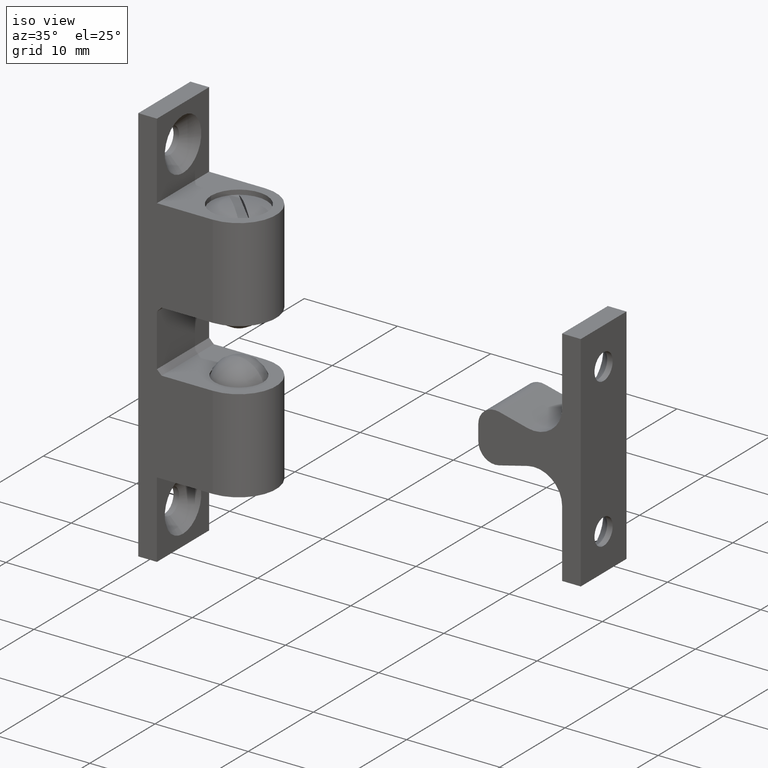
[diagram: clean part render]
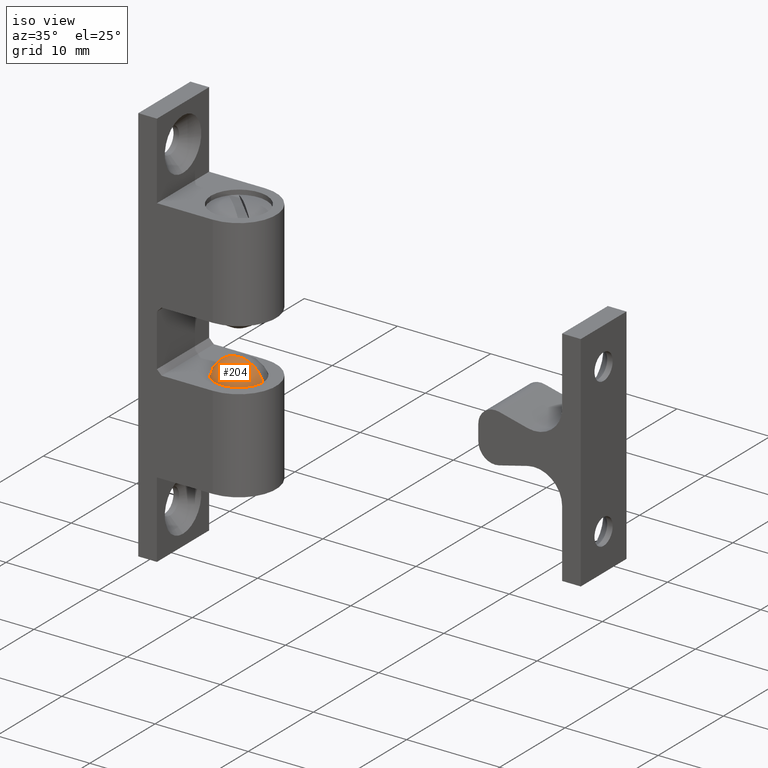
[diagram: same view with one face highlighted and labeled with its STEP entity id]
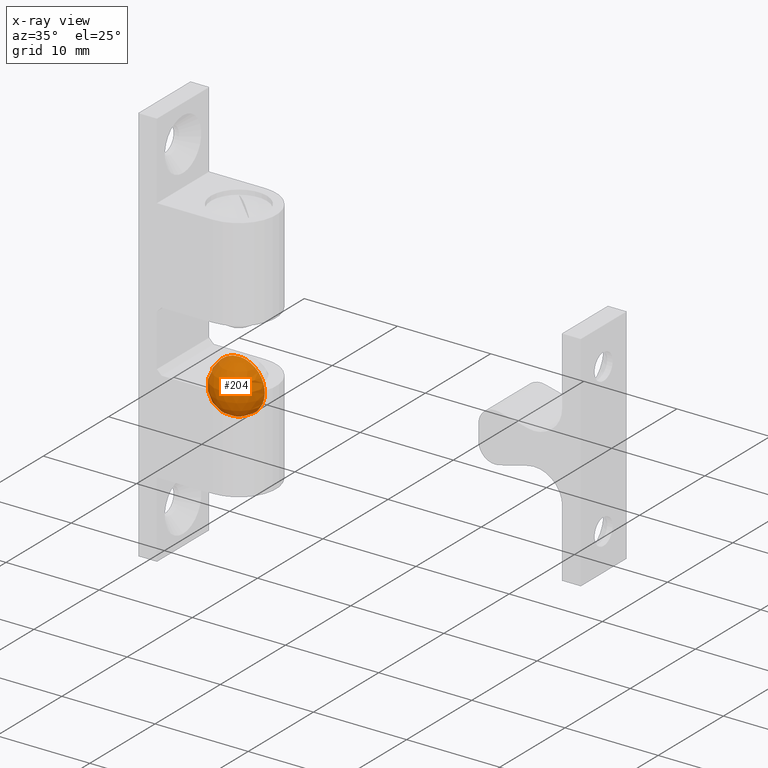
[diagram: x-ray of the same camera — body ghosted, the highlighted face saturated]
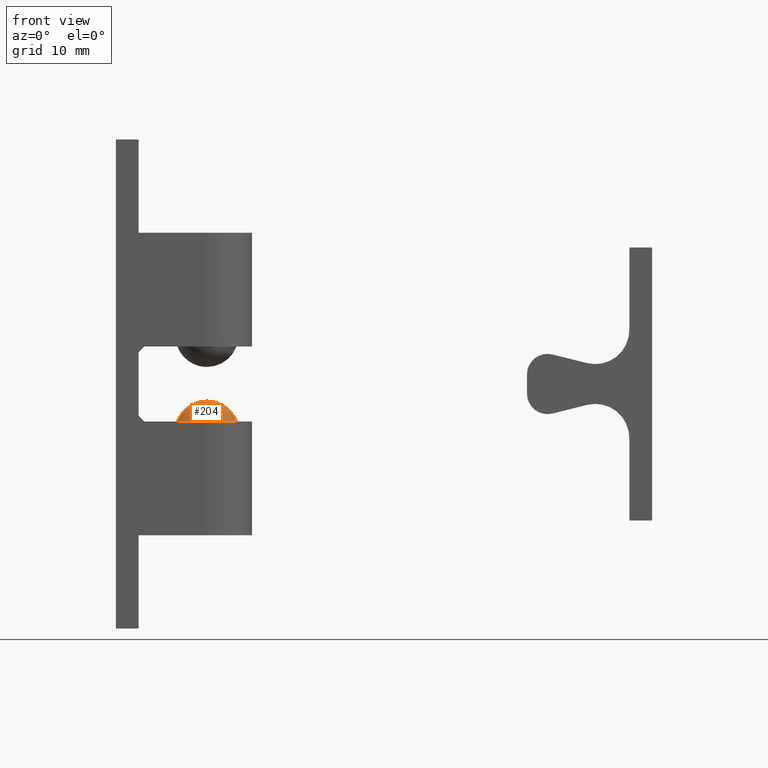
[diagram: same view with one face highlighted and labeled with its STEP entity id]
A machine part, iso view. The second image highlights one B-rep face of the part: STEP entity #204.
The next image is the same camera in x-ray: the body ghosted, the highlighted face saturated — about 0% of this face is hidden behind the body in this view.
A second angle (front view) of the same face is appended — the face is thin or edge-on in the first view.
In plain terms, the highlighted spherical surface has radius 2.778 mm.
Its self-contained STEP definition (entity closure, byte-faithful):
#204=ADVANCED_FACE('',(#275),#274,.T.);
#274=SPHERICAL_SURFACE('',#991,2.77800000000E+00);
#275=FACE_OUTER_BOUND('',#992,.T.);
#988=CARTESIAN_POINT('',(8.00000000000E+00,0.00000000000E+00,4.27800000000E+00));
#989=DIRECTION('',(0.00000000000E+00,0.00000000000E+00,-1.00000000000E+00));
#990=DIRECTION('',(1.00000000000E+00,-1.22460635382E-16,-0.00000000000E+00));
#991=AXIS2_PLACEMENT_3D('',#988,#989,#990);
#992=EDGE_LOOP('',(#1400,#1401));
#1400=ORIENTED_EDGE('',*,*,#1732,.T.);
#1401=ORIENTED_EDGE('',*,*,#1733,.T.);
#1732=EDGE_CURVE('',#1898,#1899,#1900,.T.);
#1733=EDGE_CURVE('',#1899,#1898,#1906,.T.);
#1898=VERTEX_POINT('',#3000);
#1899=VERTEX_POINT('',#3001);
#1900=CIRCLE('',#3005,2.77800000000E+00);
#1906=(BOUNDED_CURVE() B_SPLINE_CURVE(2,(#3006,#3007,#3008,#3009,#3010),.UNSPECIFIED.,.F.,.F.) B_SPLINE_CURVE_WITH_KNOTS((3,2,3),(0.00000000000E+00,5.00000000000E-01,1.00000000000E+00),.UNSPECIFIED.) CURVE() GEOMETRIC_REPRESENTATION_ITEM() RATIONAL_B_SPLINE_CURVE((7.50000000000E-01,5.30330085890E-01,7.50000000000E-01,5.30330085890E-01,7.50000000000E-01)) REPRESENTATION_ITEM('') );
#3000=CARTESIAN_POINT('',(8.00000000000E+00,0.00000000000E+00,1.50000000000E+00));
#3001=CARTESIAN_POINT('',(8.00000000000E+00,0.00000000000E+00,7.05600000000E+00));
#3002=CARTESIAN_POINT('',(8.00000000000E+00,0.00000000000E+00,4.27800000000E+00));
#3003=DIRECTION('',(-1.22460635382E-16,-1.00000000000E+00,-0.00000000000E+00));
#3004=DIRECTION('',(0.00000000000E+00,0.00000000000E+00,-1.00000000000E+00));
#3005=AXIS2_PLACEMENT_3D('',#3002,#3003,#3004);
#3006=CARTESIAN_POINT('',(8.00000000000E+00,2.08302874261E-32,7.05600000000E+00));
#3007=CARTESIAN_POINT('',(5.22200000000E+00,5.23364152895E-16,7.05600000000E+00));
#3008=CARTESIAN_POINT('',(5.22200000000E+00,2.96059473233E-16,4.27800000000E+00));
#3009=CARTESIAN_POINT('',(5.22200000000E+00,5.23364152895E-16,1.50000000000E+00));
#3010=CARTESIAN_POINT('',(8.00000000000E+00,6.24908622783E-32,1.50000000000E+00));